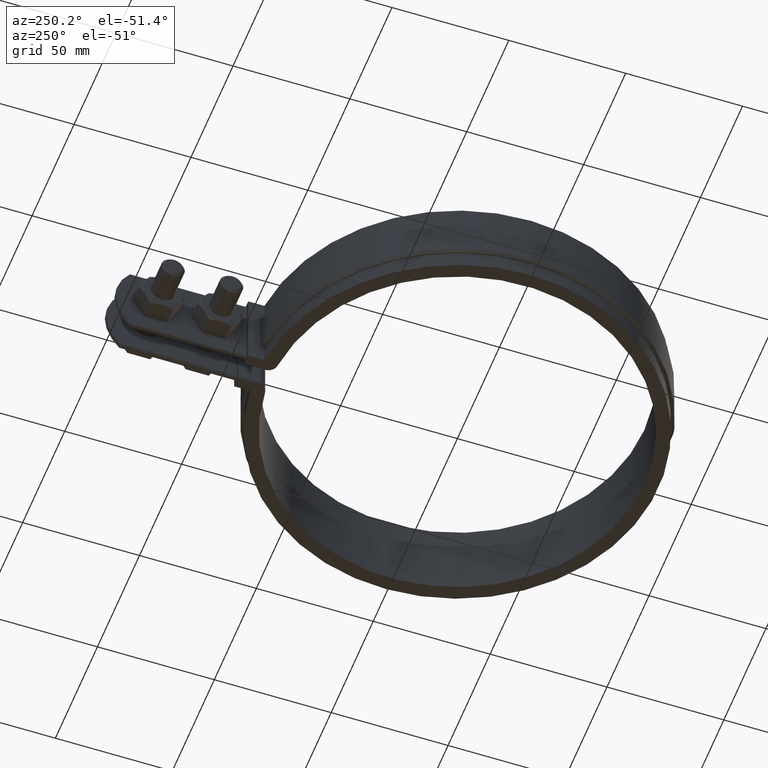
[diagram: clean part render]
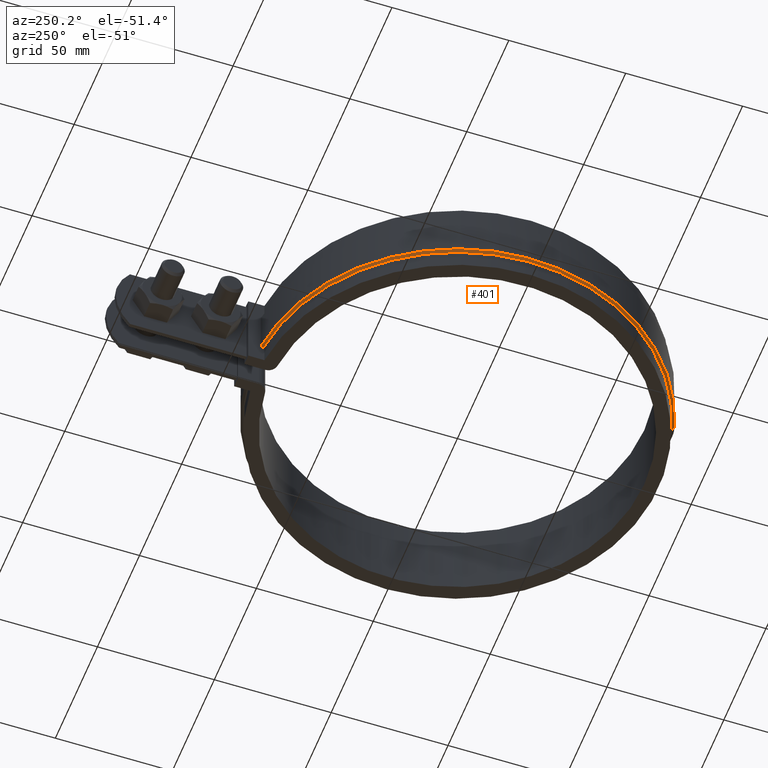
[diagram: same view with one face highlighted and labeled with its STEP entity id]
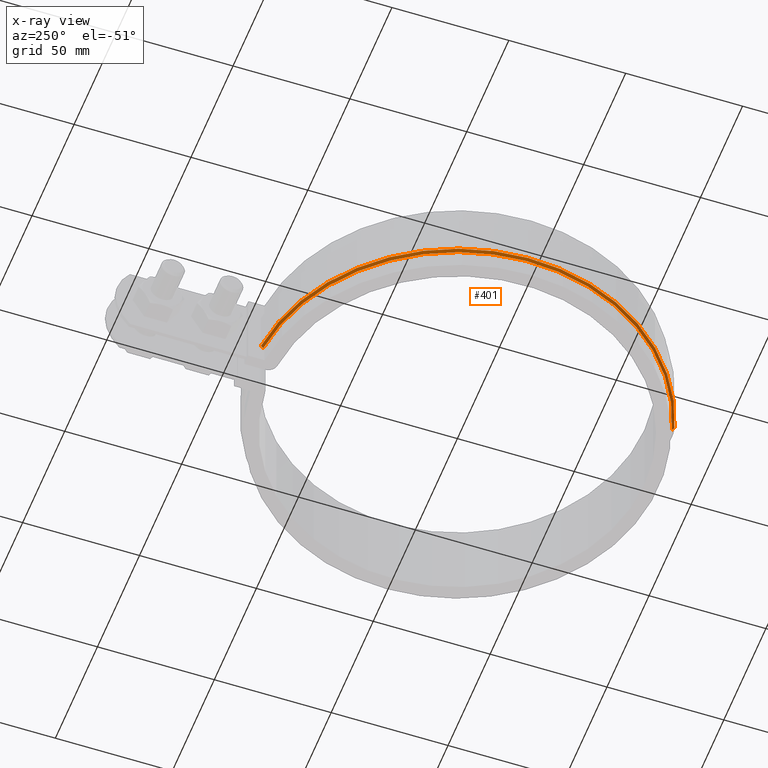
[diagram: x-ray of the same camera — body ghosted, the highlighted face saturated]
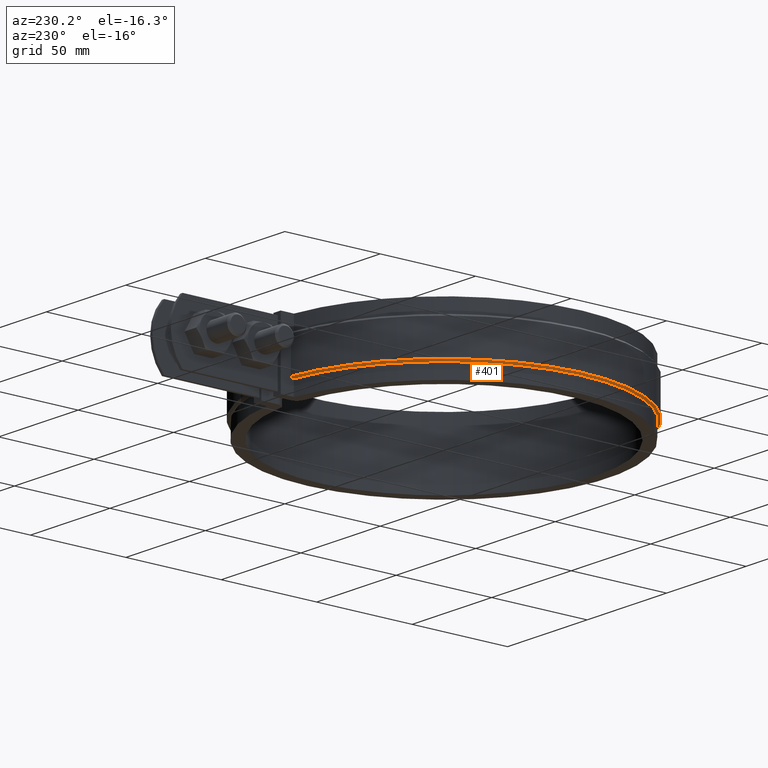
[diagram: same view with one face highlighted and labeled with its STEP entity id]
A machine part, auxiliary view. The second image highlights one B-rep face of the part: STEP entity #401.
The next image is the same camera in x-ray: the body ghosted, the highlighted face saturated — about 0% of this face is hidden behind the body in this view.
A second angle (auxiliary view) of the same face is appended — the face is thin or edge-on in the first view.
In plain terms, the highlighted conical surface has half-angle 45 deg.
Its self-contained STEP definition (entity closure, byte-faithful):
#401 = ADVANCED_FACE( '', ( #662 ), #663, .T. );
#662 = FACE_OUTER_BOUND( '', #1743, .T. );
#663 = CONICAL_SURFACE( '', #1744, 86.5000000000000, 0.785398163397448 );
#1743 = EDGE_LOOP( '', ( #4069, #4070, #4071, #4072 ) );
#1744 = AXIS2_PLACEMENT_3D( '', #4073, #4074, #4075 );
#4069 = ORIENTED_EDGE( '', *, *, #4834, .F. );
#4070 = ORIENTED_EDGE( '', *, *, #4843, .F. );
#4071 = ORIENTED_EDGE( '', *, *, #4844, .F. );
#4072 = ORIENTED_EDGE( '', *, *, #4845, .F. );
#4073 = CARTESIAN_POINT( '', ( 0.000000000000000, 0.000000000000000, -26.0000000000000 ) );
#4074 = DIRECTION( '', ( 0.000000000000000, 0.000000000000000, 1.00000000000000 ) );
#4075 = DIRECTION( '', ( 1.00000000000000, 0.000000000000000, 0.000000000000000 ) );
#4834 = EDGE_CURVE( '', #5392, #5394, #5395, .T. );
#4843 = EDGE_CURVE( '', #5408, #5392, #5409, .T. );
#4844 = EDGE_CURVE( '', #5410, #5408, #5411, .T. );
#4845 = EDGE_CURVE( '', #5394, #5410, #5412, .F. );
#5392 = VERTEX_POINT( '', #8192 );
#5394 = VERTEX_POINT( '', #8195 );
#5395 = B_SPLINE_CURVE_WITH_KNOTS( '', 3, ( #8196, #8197, #8198, #8199 ), .UNSPECIFIED., .F., .F., ( 4, 4 ), ( 0.000000000000000, 0.00141753669228154 ), .UNSPECIFIED. );
#5408 = VERTEX_POINT( '', #8222 );
#5409 = CIRCLE( '', #8223, 86.5000000000000 );
#5410 = VERTEX_POINT( '', #8224 );
#5411 = LINE( '', #8225, #8226 );
#5412 = CIRCLE( '', #8227, 87.5000000000000 );
#8192 = CARTESIAN_POINT( '', ( -8.40000000000000, 86.0911726020734, -26.0000000000000 ) );
#8195 = CARTESIAN_POINT( '', ( -8.40000000000004, 87.0958667216763, -25.0000000000000 ) );
#8196 = CARTESIAN_POINT( '', ( -8.39999999999999, 86.0911726020734, -26.0000000000000 ) );
#8197 = CARTESIAN_POINT( '', ( -8.39999999999999, 86.4260797077377, -25.6666757752670 ) );
#8198 = CARTESIAN_POINT( '', ( -8.40000000000000, 86.7609776437573, -25.3333423371083 ) );
#8199 = CARTESIAN_POINT( '', ( -8.40000000000000, 87.0958667216763, -25.0000000000000 ) );
#8222 = CARTESIAN_POINT( '', ( -24.6253777049324, -82.9206896551724, -26.0000000000000 ) );
#8223 = AXIS2_PLACEMENT_3D( '', #8897, #8898, #8899 );
#8224 = CARTESIAN_POINT( '', ( -24.9100641523883, -83.8793103448276, -25.0000000000000 ) );
#8225 = CARTESIAN_POINT( '', ( -24.9100641523883, -83.8793103448276, -25.0000000000000 ) );
#8226 = VECTOR( '', #8900, 1000.00000000000 );
#8227 = AXIS2_PLACEMENT_3D( '', #8901, #8902, #8903 );
#8897 = CARTESIAN_POINT( '', ( 0.000000000000000, 0.000000000000000, -26.0000000000000 ) );
#8898 = DIRECTION( '', ( 0.000000000000000, 0.000000000000000, -1.00000000000000 ) );
#8899 = DIRECTION( '', ( -1.00000000000000, 0.000000000000000, 0.000000000000000 ) );
#8900 = DIRECTION( '', ( 0.201303717507951, 0.677847190240897, -0.707106781186547 ) );
#8901 = CARTESIAN_POINT( '', ( 0.000000000000000, 0.000000000000000, -25.0000000000000 ) );
#8902 = DIRECTION( '', ( 0.000000000000000, 0.000000000000000, -1.00000000000000 ) );
#8903 = DIRECTION( '', ( -1.00000000000000, 0.000000000000000, 0.000000000000000 ) );